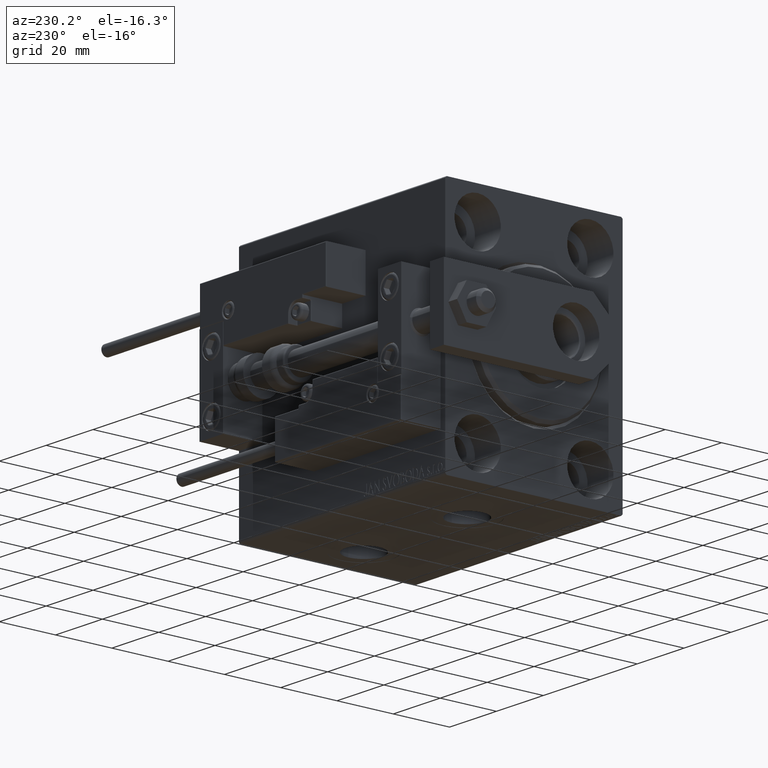
[diagram: clean part render]
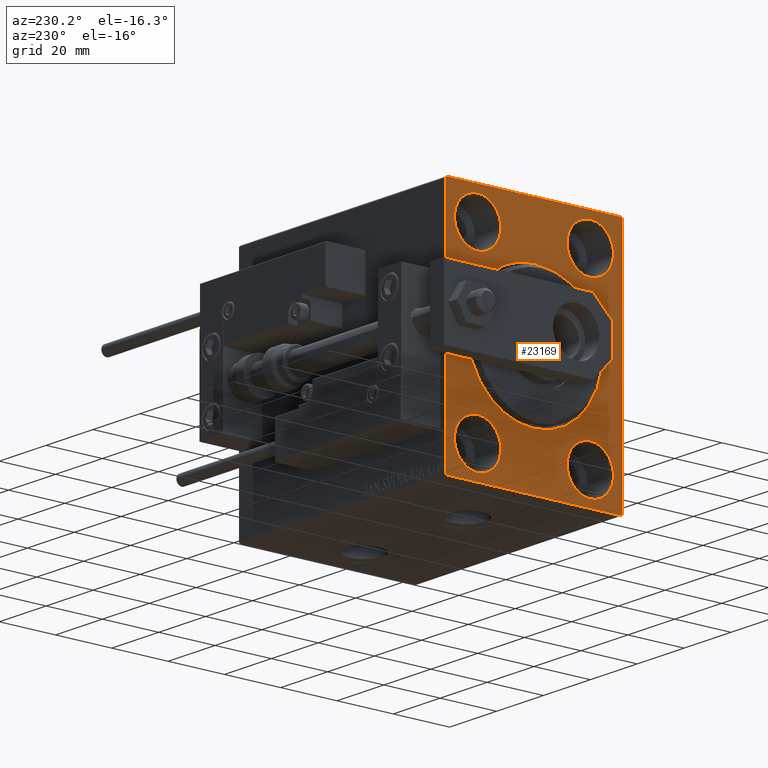
[diagram: same view with one face highlighted and labeled with its STEP entity id]
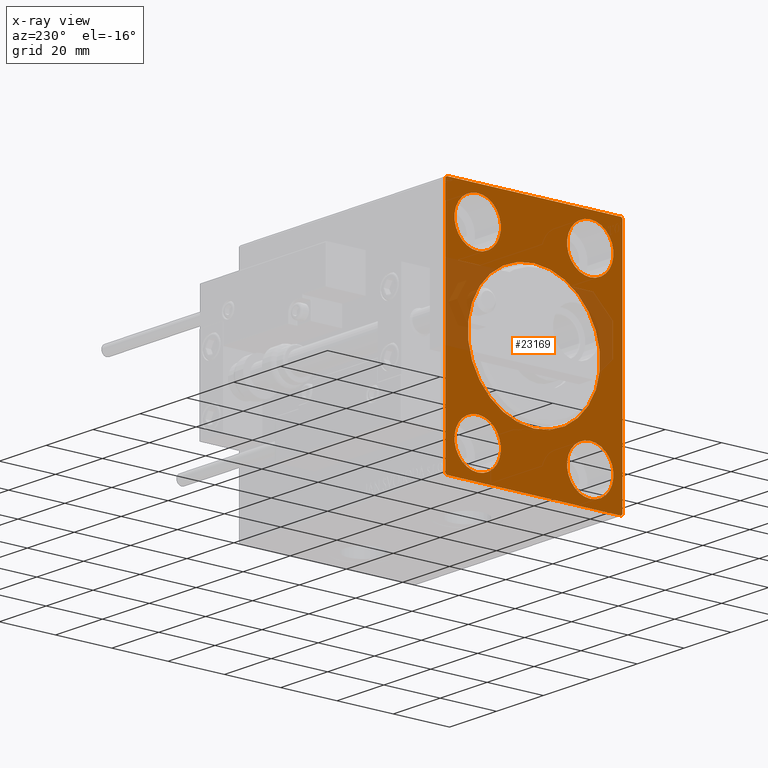
[diagram: x-ray of the same camera — body ghosted, the highlighted face saturated]
A machine part, auxiliary view. The second image highlights one B-rep face of the part: STEP entity #23169.
The next image is the same camera in x-ray: the body ghosted, the highlighted face saturated — about 14% of this face is hidden behind the body in this view.
In plain terms, the highlighted planar face has unit normal (1, 0, 0).
Its self-contained STEP definition (entity closure, byte-faithful):
#276 = AXIS2_PLACEMENT_3D ( 'NONE', #46301, #38658, #23376 ) ;
#437 = CARTESIAN_POINT ( 'NONE',  ( 0.000000000000000000, 19.99999999999999645, -23.24999999999999289 ) ) ;
#541 = EDGE_LOOP ( 'NONE', ( #25579, #2327, #29636, #2912, #23724, #41544, #20055, #10520 ) ) ;
#1403 = CARTESIAN_POINT ( 'NONE',  ( 0.000000000000000000, 20.00000000000000355, 23.25000000000000355 ) ) ;
#1456 = DIRECTION ( 'NONE',  ( -1.000000000000000000, 0.000000000000000000, 0.000000000000000000 ) ) ;
#1721 = ORIENTED_EDGE ( 'NONE', *, *, #49206, .F. ) ;
#2327 = ORIENTED_EDGE ( 'NONE', *, *, #41482, .T. ) ;
#2912 = ORIENTED_EDGE ( 'NONE', *, *, #7259, .T. ) ;
#3340 = CARTESIAN_POINT ( 'NONE',  ( 0.000000000000000000, 31.50000000000000000, 42.50000000000000711 ) ) ;
#3698 = CARTESIAN_POINT ( 'NONE',  ( 0.000000000000000000, 20.00000000000000355, 31.50000000000000000 ) ) ;
#3988 = CIRCLE ( 'NONE', #14564, 23.49999999999998934 ) ;
#4210 = CARTESIAN_POINT ( 'NONE',  ( 0.000000000000000000, 19.99999999999999645, -39.74999999999999289 ) ) ;
#4486 = FACE_BOUND ( 'NONE', #22943, .T. ) ;
#4729 = FACE_BOUND ( 'NONE', #35873, .T. ) ;
#4961 = VECTOR ( 'NONE', #9770, 1000.000000000000000 ) ;
#4990 = DIRECTION ( 'NONE',  ( 0.000000000000000000, 0.000000000000000000, -1.000000000000000000 ) ) ;
#5249 = EDGE_CURVE ( 'NONE', #28299, #20757, #30048, .T. ) ;
#5825 = CARTESIAN_POINT ( 'NONE',  ( 0.000000000000000000, 31.50000000000001421, -42.00000000000000711 ) ) ;
#6301 = VERTEX_POINT ( 'NONE', #40444 ) ;
#7259 = EDGE_CURVE ( 'NONE', #8756, #25511, #7569, .T. ) ;
#7357 = DIRECTION ( 'NONE',  ( 0.000000000000000000, 0.000000000000000000, -1.000000000000000000 ) ) ;
#7442 = EDGE_CURVE ( 'NONE', #17879, #23906, #35792, .T. ) ;
#7569 = LINE ( 'NONE', #23088, #29273 ) ;
#7782 = ORIENTED_EDGE ( 'NONE', *, *, #22947, .F. ) ;
#7803 = ORIENTED_EDGE ( 'NONE', *, *, #19917, .F. ) ;
#8051 = PLANE ( 'NONE',  #26732 ) ;
#8525 = LINE ( 'NONE', #43402, #39821 ) ;
#8756 = VERTEX_POINT ( 'NONE', #41589 ) ;
#8780 = CARTESIAN_POINT ( 'NONE',  ( 0.000000000000000000, 31.50000000000001421, -42.00000000000000711 ) ) ;
#8803 = FACE_OUTER_BOUND ( 'NONE', #541, .T. ) ;
#8866 = DIRECTION ( 'NONE',  ( 0.000000000000000000, 0.000000000000000000, 1.000000000000000000 ) ) ;
#9056 = CARTESIAN_POINT ( 'NONE',  ( 0.000000000000000000, 0.000000000000000000, 0.000000000000000000 ) ) ;
#9199 = VERTEX_POINT ( 'NONE', #19035 ) ;
#9499 = CARTESIAN_POINT ( 'NONE',  ( 0.000000000000000000, 0.000000000000000000, 23.49999999999998934 ) ) ;
#9761 = AXIS2_PLACEMENT_3D ( 'NONE', #22020, #37047, #48267 ) ;
#9770 = DIRECTION ( 'NONE',  ( -0.000000000000000000, -0.7071067811865573427, 0.7071067811865378028 ) ) ;
#10176 = CARTESIAN_POINT ( 'NONE',  ( 0.000000000000000000, 0.000000000000000000, 0.000000000000000000 ) ) ;
#10504 = EDGE_CURVE ( 'NONE', #38240, #40945, #8525, .T. ) ;
#10520 = ORIENTED_EDGE ( 'NONE', *, *, #30855, .T. ) ;
#11169 = LINE ( 'NONE', #26697, #22623 ) ;
#12405 = CARTESIAN_POINT ( 'NONE',  ( 0.000000000000000000, -31.50000000000000000, 41.99999999999999289 ) ) ;
#12474 = VECTOR ( 'NONE', #12897, 1000.000000000000000 ) ;
#12516 = VECTOR ( 'NONE', #20465, 1000.000000000000000 ) ;
#12543 = VERTEX_POINT ( 'NONE', #49956 ) ;
#12762 = ORIENTED_EDGE ( 'NONE', *, *, #7442, .F. ) ;
#12897 = DIRECTION ( 'NONE',  ( -0.000000000000000000, 0.7071067811865378028, 0.7071067811865573427 ) ) ;
#13322 = VERTEX_POINT ( 'NONE', #5825 ) ;
#13637 = EDGE_LOOP ( 'NONE', ( #36415, #1721 ) ) ;
#13810 = DIRECTION ( 'NONE',  ( -1.000000000000000000, 0.000000000000000000, 0.000000000000000000 ) ) ;
#14114 = CARTESIAN_POINT ( 'NONE',  ( 0.000000000000000000, -20.00000000000000355, -31.49999999999999289 ) ) ;
#14253 = VERTEX_POINT ( 'NONE', #14485 ) ;
#14300 = DIRECTION ( 'NONE',  ( 0.000000000000000000, -1.000000000000000000, -2.202823461557850341E-16 ) ) ;
#14457 = CIRCLE ( 'NONE', #20892, 8.249999999999992895 ) ;
#14485 = CARTESIAN_POINT ( 'NONE',  ( 0.000000000000000000, -31.50000000000000000, 41.99999999999999289 ) ) ;
#14523 = EDGE_CURVE ( 'NONE', #23906, #17879, #18014, .T. ) ;
#14564 = AXIS2_PLACEMENT_3D ( 'NONE', #10176, #41506, #33349 ) ;
#14736 = CARTESIAN_POINT ( 'NONE',  ( 0.000000000000000000, -19.99999999999999645, 39.74999999999999289 ) ) ;
#14861 = DIRECTION ( 'NONE',  ( 0.000000000000000000, 0.000000000000000000, 1.000000000000000000 ) ) ;
#15448 = DIRECTION ( 'NONE',  ( -0.000000000000000000, 0.7071067811865474617, -0.7071067811865474617 ) ) ;
#15733 = EDGE_LOOP ( 'NONE', ( #12762, #24702 ) ) ;
#15937 = FACE_BOUND ( 'NONE', #20077, .T. ) ;
#17129 = CARTESIAN_POINT ( 'NONE',  ( 0.000000000000000000, 20.00000000000000355, 31.50000000000000000 ) ) ;
#17325 = CIRCLE ( 'NONE', #276, 8.249999999999992895 ) ;
#17429 = CARTESIAN_POINT ( 'NONE',  ( 0.000000000000000000, -31.50000000000000000, -42.00000000000002132 ) ) ;
#17879 = VERTEX_POINT ( 'NONE', #437 ) ;
#18014 = CIRCLE ( 'NONE', #48098, 8.250000000000000000 ) ;
#19035 = CARTESIAN_POINT ( 'NONE',  ( 0.000000000000000000, -19.99999999999999645, 23.25000000000000355 ) ) ;
#19422 = AXIS2_PLACEMENT_3D ( 'NONE', #35857, #27703, #8866 ) ;
#19917 = EDGE_CURVE ( 'NONE', #24749, #41656, #14457, .T. ) ;
#19975 = LINE ( 'NONE', #8780, #12516 ) ;
#20055 = ORIENTED_EDGE ( 'NONE', *, *, #10504, .F. ) ;
#20077 = EDGE_LOOP ( 'NONE', ( #7782, #31238 ) ) ;
#20140 = CIRCLE ( 'NONE', #48609, 8.250000000000000000 ) ;
#20461 = DIRECTION ( 'NONE',  ( 0.000000000000000000, 1.000000000000000000, 0.000000000000000000 ) ) ;
#20465 = DIRECTION ( 'NONE',  ( 0.000000000000000000, -0.7071067811865378028, -0.7071067811865573427 ) ) ;
#20757 = VERTEX_POINT ( 'NONE', #9499 ) ;
#20892 = AXIS2_PLACEMENT_3D ( 'NONE', #17129, #13810, #29848 ) ;
#21402 = EDGE_CURVE ( 'NONE', #42108, #6301, #20140, .T. ) ;
#22020 = CARTESIAN_POINT ( 'NONE',  ( 0.000000000000000000, 19.99999999999999645, -31.49999999999999289 ) ) ;
#22062 = EDGE_CURVE ( 'NONE', #14253, #32892, #11169, .T. ) ;
#22623 = VECTOR ( 'NONE', #7357, 1000.000000000000000 ) ;
#22781 = EDGE_CURVE ( 'NONE', #20757, #28299, #3988, .T. ) ;
#22943 = EDGE_LOOP ( 'NONE', ( #44404, #7803 ) ) ;
#22947 = EDGE_CURVE ( 'NONE', #6301, #42108, #33240, .T. ) ;
#23080 = CARTESIAN_POINT ( 'NONE',  ( 0.000000000000000000, -31.00000000000000000, -42.50000000000000711 ) ) ;
#23088 = CARTESIAN_POINT ( 'NONE',  ( 0.000000000000000000, 30.99999999999998579, 42.50000000000000711 ) ) ;
#23169 = ADVANCED_FACE ( 'NONE', ( #4729, #23573, #48005, #4486, #15937, #8803 ), #8051, .F. ) ;
#23376 = DIRECTION ( 'NONE',  ( 0.000000000000000000, 0.000000000000000000, 1.000000000000000000 ) ) ;
#23573 = FACE_BOUND ( 'NONE', #15733, .T. ) ;
#23724 = ORIENTED_EDGE ( 'NONE', *, *, #40679, .F. ) ;
#23906 = VERTEX_POINT ( 'NONE', #4210 ) ;
#24614 = CARTESIAN_POINT ( 'NONE',  ( 0.000000000000000000, 19.99999999999999645, -31.49999999999999289 ) ) ;
#24702 = ORIENTED_EDGE ( 'NONE', *, *, #14523, .F. ) ;
#24749 = VERTEX_POINT ( 'NONE', #1403 ) ;
#25511 = VERTEX_POINT ( 'NONE', #41682 ) ;
#25579 = ORIENTED_EDGE ( 'NONE', *, *, #22062, .F. ) ;
#26257 = LINE ( 'NONE', #3340, #41100 ) ;
#26697 = CARTESIAN_POINT ( 'NONE',  ( 0.000000000000000000, -31.50000000000000000, 42.49999999999999289 ) ) ;
#26732 = AXIS2_PLACEMENT_3D ( 'NONE', #9056, #47001, #4990 ) ;
#26805 = DIRECTION ( 'NONE',  ( 0.000000000000000000, 0.000000000000000000, -1.000000000000000000 ) ) ;
#26900 = ORIENTED_EDGE ( 'NONE', *, *, #22781, .T. ) ;
#27703 = DIRECTION ( 'NONE',  ( -1.000000000000000000, 0.000000000000000000, 0.000000000000000000 ) ) ;
#28299 = VERTEX_POINT ( 'NONE', #42018 ) ;
#29273 = VECTOR ( 'NONE', #15448, 1000.000000000000114 ) ;
#29614 = LINE ( 'NONE', #44642, #4961 ) ;
#29636 = ORIENTED_EDGE ( 'NONE', *, *, #42352, .F. ) ;
#29848 = DIRECTION ( 'NONE',  ( 0.000000000000000000, 0.000000000000000000, 1.000000000000000000 ) ) ;
#30048 = CIRCLE ( 'NONE', #50354, 23.49999999999998934 ) ;
#30537 = EDGE_CURVE ( 'NONE', #41656, #24749, #32580, .T. ) ;
#30855 = EDGE_CURVE ( 'NONE', #38240, #32892, #29614, .T. ) ;
#31238 = ORIENTED_EDGE ( 'NONE', *, *, #21402, .F. ) ;
#31538 = VERTEX_POINT ( 'NONE', #14736 ) ;
#31747 = AXIS2_PLACEMENT_3D ( 'NONE', #3698, #49287, #45973 ) ;
#31996 = CIRCLE ( 'NONE', #36859, 8.249999999999992895 ) ;
#32342 = LINE ( 'NONE', #39988, #42573 ) ;
#32580 = CIRCLE ( 'NONE', #31747, 8.249999999999992895 ) ;
#32771 = DIRECTION ( 'NONE',  ( 0.000000000000000000, 0.000000000000000000, 1.000000000000000000 ) ) ;
#32892 = VERTEX_POINT ( 'NONE', #17429 ) ;
#33240 = CIRCLE ( 'NONE', #19422, 8.250000000000000000 ) ;
#33349 = DIRECTION ( 'NONE',  ( 0.000000000000000000, 0.000000000000000000, -1.000000000000000000 ) ) ;
#34111 = CARTESIAN_POINT ( 'NONE',  ( 0.000000000000000000, 31.00000000000002842, -42.50000000000000711 ) ) ;
#34183 = ORIENTED_EDGE ( 'NONE', *, *, #5249, .T. ) ;
#35792 = CIRCLE ( 'NONE', #9761, 8.250000000000000000 ) ;
#35857 = CARTESIAN_POINT ( 'NONE',  ( 0.000000000000000000, -20.00000000000000355, -31.49999999999999289 ) ) ;
#35873 = EDGE_LOOP ( 'NONE', ( #26900, #34183 ) ) ;
#36415 = ORIENTED_EDGE ( 'NONE', *, *, #39978, .F. ) ;
#36821 = CARTESIAN_POINT ( 'NONE',  ( 0.000000000000000000, 20.00000000000000355, 39.74999999999999289 ) ) ;
#36859 = AXIS2_PLACEMENT_3D ( 'NONE', #48791, #1456, #48043 ) ;
#37047 = DIRECTION ( 'NONE',  ( -1.000000000000000000, 0.000000000000000000, 0.000000000000000000 ) ) ;
#37770 = CARTESIAN_POINT ( 'NONE',  ( 0.000000000000000000, 0.000000000000000000, 0.000000000000000000 ) ) ;
#38240 = VERTEX_POINT ( 'NONE', #23080 ) ;
#38658 = DIRECTION ( 'NONE',  ( -1.000000000000000000, 0.000000000000000000, 0.000000000000000000 ) ) ;
#39821 = VECTOR ( 'NONE', #20461, 1000.000000000000000 ) ;
#39909 = DIRECTION ( 'NONE',  ( -1.000000000000000000, 0.000000000000000000, 0.000000000000000000 ) ) ;
#39978 = EDGE_CURVE ( 'NONE', #31538, #9199, #17325, .T. ) ;
#39988 = CARTESIAN_POINT ( 'NONE',  ( 0.000000000000000000, 31.50000000000001421, -42.50000000000000711 ) ) ;
#40444 = CARTESIAN_POINT ( 'NONE',  ( 0.000000000000000000, -20.00000000000000355, -23.24999999999999289 ) ) ;
#40679 = EDGE_CURVE ( 'NONE', #13322, #25511, #32342, .T. ) ;
#40945 = VERTEX_POINT ( 'NONE', #34111 ) ;
#41100 = VECTOR ( 'NONE', #14300, 1000.000000000000000 ) ;
#41482 = EDGE_CURVE ( 'NONE', #14253, #12543, #47041, .T. ) ;
#41506 = DIRECTION ( 'NONE',  ( 1.000000000000000000, 0.000000000000000000, 0.000000000000000000 ) ) ;
#41544 = ORIENTED_EDGE ( 'NONE', *, *, #49462, .T. ) ;
#41589 = CARTESIAN_POINT ( 'NONE',  ( 0.000000000000000000, 30.99999999999998579, 42.50000000000000711 ) ) ;
#41656 = VERTEX_POINT ( 'NONE', #36821 ) ;
#41682 = CARTESIAN_POINT ( 'NONE',  ( 0.000000000000000000, 31.50000000000000000, 41.99999999999999289 ) ) ;
#42018 = CARTESIAN_POINT ( 'NONE',  ( 0.000000000000000000, 2.877919977996279137E-15, -23.49999999999998934 ) ) ;
#42108 = VERTEX_POINT ( 'NONE', #46673 ) ;
#42352 = EDGE_CURVE ( 'NONE', #8756, #12543, #26257, .T. ) ;
#42573 = VECTOR ( 'NONE', #47872, 1000.000000000000000 ) ;
#43402 = CARTESIAN_POINT ( 'NONE',  ( 0.000000000000000000, -31.50000000000000000, -42.50000000000000711 ) ) ;
#44404 = ORIENTED_EDGE ( 'NONE', *, *, #30537, .F. ) ;
#44642 = CARTESIAN_POINT ( 'NONE',  ( 0.000000000000000000, -31.00000000000000000, -42.50000000000000711 ) ) ;
#45426 = DIRECTION ( 'NONE',  ( -1.000000000000000000, 0.000000000000000000, 0.000000000000000000 ) ) ;
#45973 = DIRECTION ( 'NONE',  ( 0.000000000000000000, 0.000000000000000000, 1.000000000000000000 ) ) ;
#46301 = CARTESIAN_POINT ( 'NONE',  ( 0.000000000000000000, -19.99999999999999645, 31.50000000000000000 ) ) ;
#46673 = CARTESIAN_POINT ( 'NONE',  ( 0.000000000000000000, -20.00000000000000355, -39.74999999999999289 ) ) ;
#47001 = DIRECTION ( 'NONE',  ( 1.000000000000000000, 0.000000000000000000, 0.000000000000000000 ) ) ;
#47041 = LINE ( 'NONE', #12405, #12474 ) ;
#47872 = DIRECTION ( 'NONE',  ( 0.000000000000000000, -1.632680918566406300E-16, 1.000000000000000000 ) ) ;
#48005 = FACE_BOUND ( 'NONE', #13637, .T. ) ;
#48043 = DIRECTION ( 'NONE',  ( 0.000000000000000000, 0.000000000000000000, 1.000000000000000000 ) ) ;
#48098 = AXIS2_PLACEMENT_3D ( 'NONE', #24614, #39909, #32771 ) ;
#48267 = DIRECTION ( 'NONE',  ( 0.000000000000000000, 0.000000000000000000, 1.000000000000000000 ) ) ;
#48609 = AXIS2_PLACEMENT_3D ( 'NONE', #14114, #45426, #14861 ) ;
#48791 = CARTESIAN_POINT ( 'NONE',  ( 0.000000000000000000, -19.99999999999999645, 31.50000000000000000 ) ) ;
#49206 = EDGE_CURVE ( 'NONE', #9199, #31538, #31996, .T. ) ;
#49287 = DIRECTION ( 'NONE',  ( -1.000000000000000000, 0.000000000000000000, 0.000000000000000000 ) ) ;
#49462 = EDGE_CURVE ( 'NONE', #13322, #40945, #19975, .T. ) ;
#49956 = CARTESIAN_POINT ( 'NONE',  ( 0.000000000000000000, -31.00000000000001421, 42.49999999999999289 ) ) ;
#49959 = DIRECTION ( 'NONE',  ( 1.000000000000000000, 0.000000000000000000, 0.000000000000000000 ) ) ;
#50354 = AXIS2_PLACEMENT_3D ( 'NONE', #37770, #49959, #26805 ) ;